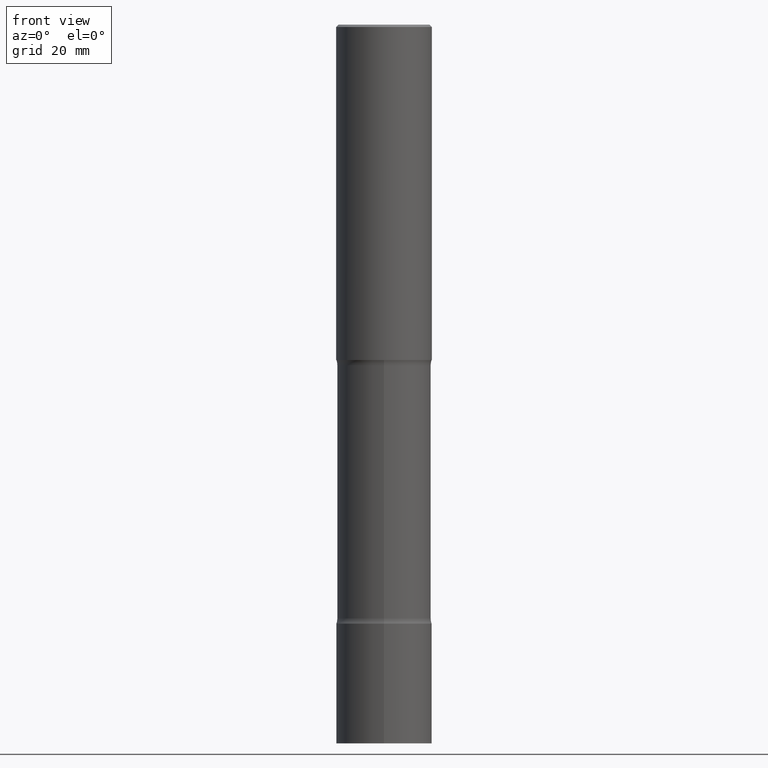
[diagram: clean part render]
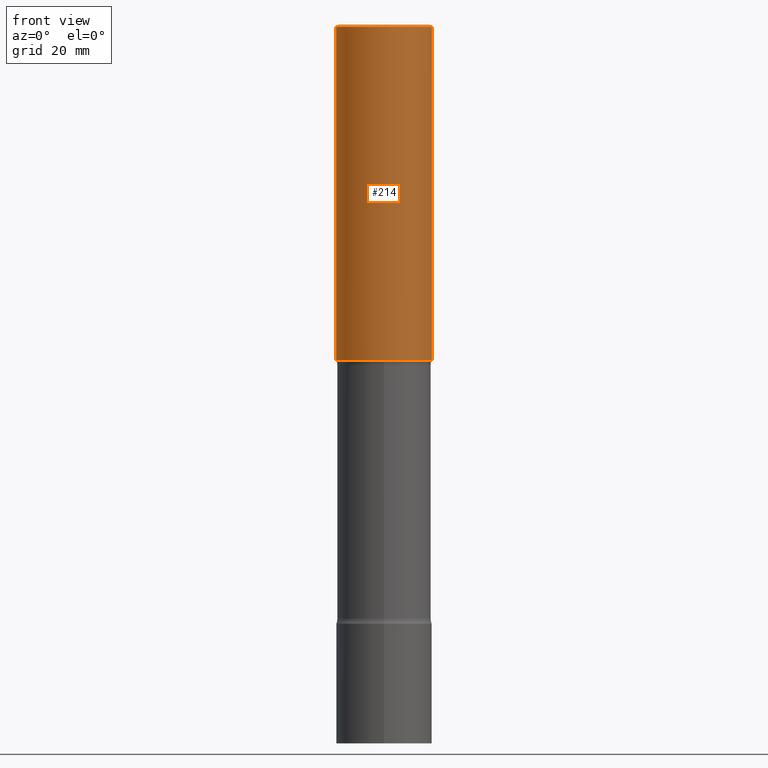
[diagram: same view with one face highlighted and labeled with its STEP entity id]
A machine part, front view. The second image highlights one B-rep face of the part: STEP entity #214.
In plain terms, the highlighted cylindrical surface (partial cylindrical patch) has radius 10 mm, axis along (-0, 0, 1).
Its self-contained STEP definition (entity closure, byte-faithful):
#22 = DIRECTION ( 'NONE',  ( -2.445468806185136877E-29, 3.491481338843145188E-15, 1.000000000000000000 ) ) ;
#32 = VERTEX_POINT ( 'NONE', #393 ) ;
#50 = VERTEX_POINT ( 'NONE', #436 ) ;
#54 = CARTESIAN_POINT ( 'NONE',  ( 0.3936999999999998279, -2.749192406205082033E-15, 1.919750796630859051E-29 ) ) ;
#61 = CIRCLE ( 'NONE', #247, 0.3936999999999996613 ) ;
#71 = VECTOR ( 'NONE', #372, 39.37007874015748143 ) ;
#91 = FACE_OUTER_BOUND ( 'NONE', #137, .T. ) ;
#108 = CARTESIAN_POINT ( 'NONE',  ( 0.3936999999999996613, -2.770807688499512973E-15, -0.02000000000000010103 ) ) ;
#125 = AXIS2_PLACEMENT_3D ( 'NONE', #446, #211, #288 ) ;
#133 = CIRCLE ( 'NONE', #378, 0.3937000000000000499 ) ;
#137 = EDGE_LOOP ( 'NONE', ( #341, #224, #212, #315 ) ) ;
#209 = CYLINDRICAL_SURFACE ( 'NONE', #125, 0.3936999999999998279 ) ;
#211 = DIRECTION ( 'NONE',  ( -2.445468806185136597E-29, 3.491481338843145583E-15, 1.000000000000000000 ) ) ;
#212 = ORIENTED_EDGE ( 'NONE', *, *, #257, .T. ) ;
#214 = ADVANCED_FACE ( 'NONE', ( #91 ), #209, .T. ) ;
#218 = DIRECTION ( 'NONE',  ( 1.000000000000000000, -6.982962677686267499E-15, 0.000000000000000000 ) ) ;
#224 = ORIENTED_EDGE ( 'NONE', *, *, #484, .T. ) ;
#226 = DIRECTION ( 'NONE',  ( 1.000000000000000000, -6.982962677686266711E-15, 0.000000000000000000 ) ) ;
#247 = AXIS2_PLACEMENT_3D ( 'NONE', #340, #303, #226 ) ;
#257 = EDGE_CURVE ( 'NONE', #32, #470, #442, .T. ) ;
#288 = DIRECTION ( 'NONE',  ( 1.000000000000000000, -6.982962677686266711E-15, 4.876176775795935793E-29 ) ) ;
#289 = VECTOR ( 'NONE', #22, 39.37007874015748143 ) ;
#301 = DIRECTION ( 'NONE',  ( -2.445468806185136597E-29, 3.491481338843145583E-15, 1.000000000000000000 ) ) ;
#303 = DIRECTION ( 'NONE',  ( -2.445468806185136597E-29, 3.491481338843145583E-15, 1.000000000000000000 ) ) ;
#315 = ORIENTED_EDGE ( 'NONE', *, *, #411, .F. ) ;
#340 = CARTESIAN_POINT ( 'NONE',  ( 4.890937612370298557E-31, -6.982962677686327354E-17, -0.02000000000000010103 ) ) ;
#341 = ORIENTED_EDGE ( 'NONE', *, *, #374, .F. ) ;
#372 = DIRECTION ( 'NONE',  ( -2.445468806185136877E-29, 3.491481338843145188E-15, 1.000000000000000000 ) ) ;
#374 = EDGE_CURVE ( 'NONE', #391, #50, #451, .T. ) ;
#378 = AXIS2_PLACEMENT_3D ( 'NONE', #488, #301, #218 ) ;
#391 = VERTEX_POINT ( 'NONE', #459 ) ;
#393 = CARTESIAN_POINT ( 'NONE',  ( 0.3937000000000000499, -1.237136582792290445E-14, -2.755899999999998684 ) ) ;
#411 = EDGE_CURVE ( 'NONE', #50, #470, #61, .T. ) ;
#436 = CARTESIAN_POINT ( 'NONE',  ( -0.3936999999999996613, 2.679362779428217552E-15, -0.02000000000000010103 ) ) ;
#442 = LINE ( 'NONE', #54, #71 ) ;
#446 = CARTESIAN_POINT ( 'NONE',  ( 0.000000000000000000, 0.000000000000000000, 0.000000000000000000 ) ) ;
#451 = LINE ( 'NONE', #496, #289 ) ;
#459 = CARTESIAN_POINT ( 'NONE',  ( -0.3937000000000000499, -2.048594773559825902E-15, -2.755899999999998684 ) ) ;
#470 = VERTEX_POINT ( 'NONE', #108 ) ;
#484 = EDGE_CURVE ( 'NONE', #391, #32, #133, .T. ) ;
#488 = CARTESIAN_POINT ( 'NONE',  ( 6.739467482965615990E-29, -9.622173421717821235E-15, -2.755899999999998684 ) ) ;
#496 = CARTESIAN_POINT ( 'NONE',  ( -0.3936999999999998279, 2.797406750687513209E-15, -1.936584745033355614E-29 ) ) ;